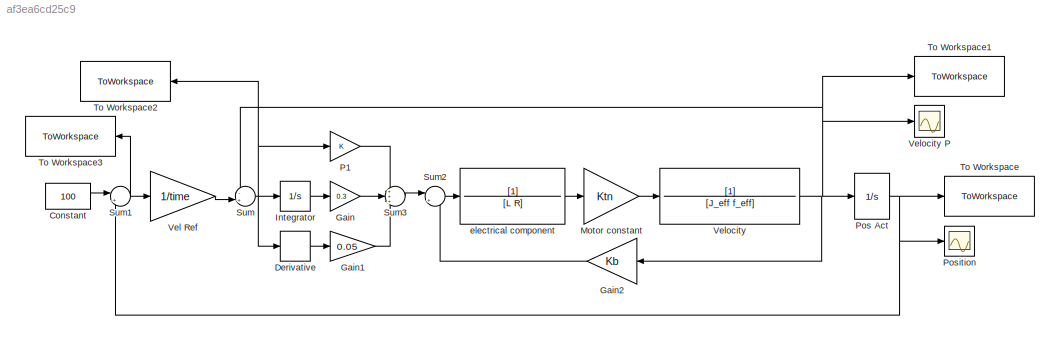
MODEL slx_af3ea6cd25c9
KIND model
CONFIG AbsTol = auto
CONFIG EnableMultiTasking = off
CONFIG FixedStep = auto
CONFIG MaxStep = auto
CONFIG MinStep = auto
CONFIG RelTol = 1e-3
CONFIG SampleTimeConstraint = Unconstrained
CONFIG SolverName = VariableStepAuto
CONFIG StartTime = 0.0
CONFIG StopTime = 500
BLOCK [Constant] Constant
  Value = 100
BLOCK [Derivative] Derivative
BLOCK [Gain] Gain
  Gain = 0.3
BLOCK [Gain] Gain1
  Gain = 0.05
BLOCK [Gain] Gain2
  Gain = Kb
BLOCK [Integrator] Integrator
BLOCK [Gain] Motor constant
  Gain = Ktn
BLOCK [Gain] P1
BLOCK [Integrator] Pos Act
BLOCK [Scope] Position
  Floating = off
  NumInputPorts = 1
  ScopeSpecificationString = Simulink.scopes.TimeScopeBlockCfg('CurrentConfiguration', extmgr.ConfigurationSet(extmgr.Configuration('Core','General UI',true),extmgr.Configuration('Core','Source UI',true),extmgr.Configuration('Sources','WiredSimulink',true,'DataLoggingVariableName','ScopeData1'),extmgr.Configuration('Visuals','Time Domain',true,'SerializedDisplays',{struct('MinYLimReal','-0.625','MaxYLimReal','5.625','YLabelRe...<+1468ch>
BLOCK [Sum] Sum
  Inputs = -+|
BLOCK [Sum] Sum1
  Inputs = |+-
BLOCK [Sum] Sum2
  Inputs = |+-
BLOCK [Sum] Sum3
  Inputs = +++
BLOCK [ToWorkspace] To Workspace
  FixptAsFi = on
  MaxDataPoints = inf
  SampleTime = -1
  SaveFormat = Timeseries
  VariableName = Pos
BLOCK [ToWorkspace] To Workspace1
  FixptAsFi = on
  MaxDataPoints = inf
  SampleTime = -1
  SaveFormat = Timeseries
  VariableName = vel
BLOCK [ToWorkspace] To Workspace2
  FixptAsFi = on
  MaxDataPoints = inf
  SampleTime = -1
  SaveFormat = Timeseries
  VariableName = err_vel
BLOCK [ToWorkspace] To Workspace3
  FixptAsFi = on
  MaxDataPoints = inf
  SampleTime = -1
  SaveFormat = Timeseries
  VariableName = err_pos
BLOCK [Gain] Vel Ref
  Gain = 1/time
BLOCK [TransferFcn] Velocity
  Denominator = [J_eff f_eff]
BLOCK [Scope] Velocity P
  Floating = off
  NumInputPorts = 1
  ScopeSpecificationString = Simulink.scopes.TimeScopeBlockCfg('CurrentConfiguration', extmgr.ConfigurationSet(extmgr.Configuration('Core','General UI',true),extmgr.Configuration('Core','Source UI',true),extmgr.Configuration('Sources','WiredSimulink',true),extmgr.Configuration('Visuals','Time Domain',true,'SerializedDisplays',{struct('MinYLimReal','-0.02083','MaxYLimReal','0.1875','YLabelReal','','MinYLimMag','0.00000','MaxYL...<+1537ch>
BLOCK [TransferFcn] electrical component
  Denominator = [L R]
LINE Constant:1 -> Sum1:1
LINE Derivative:1 -> Gain1:1
LINE Gain1:1 -> Sum3:3
LINE Gain2:1 -> Sum2:2
LINE Gain:1 -> Sum3:2
LINE Integrator:1 -> Gain:1
LINE Motor constant:1 -> Velocity:1
LINE P1:1 -> Sum3:1
NET Pos Act:1 -> Position:1, Sum1:2, To Workspace:1
NET Sum1:1 -> To Workspace3:1, Vel Ref:1
LINE Sum2:1 -> electrical component:1
LINE Sum3:1 -> Sum2:1
NET Sum:1 -> Derivative:1, Integrator:1, P1:1, To Workspace2:1
LINE Vel Ref:1 -> Sum:2
NET Velocity:1 -> Gain2:1, Pos Act:1, Sum:1, To Workspace1:1, Velocity P:1
LINE electrical component:1 -> Motor constant:1
note: NET lines group one-source signal fan-out (src -> all destinations, sorted); 1:1 wires keep LINE
